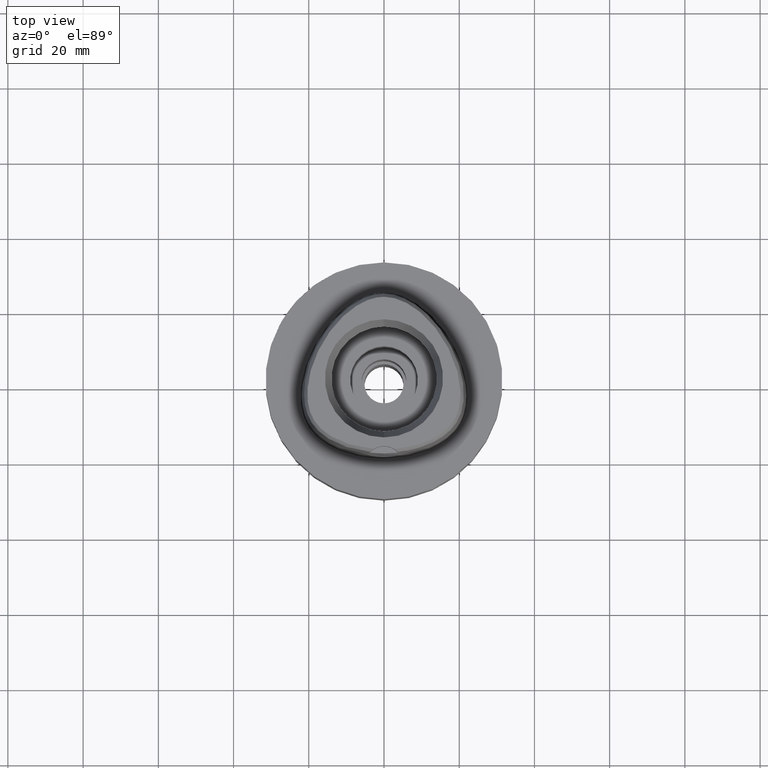
[diagram: clean part render]
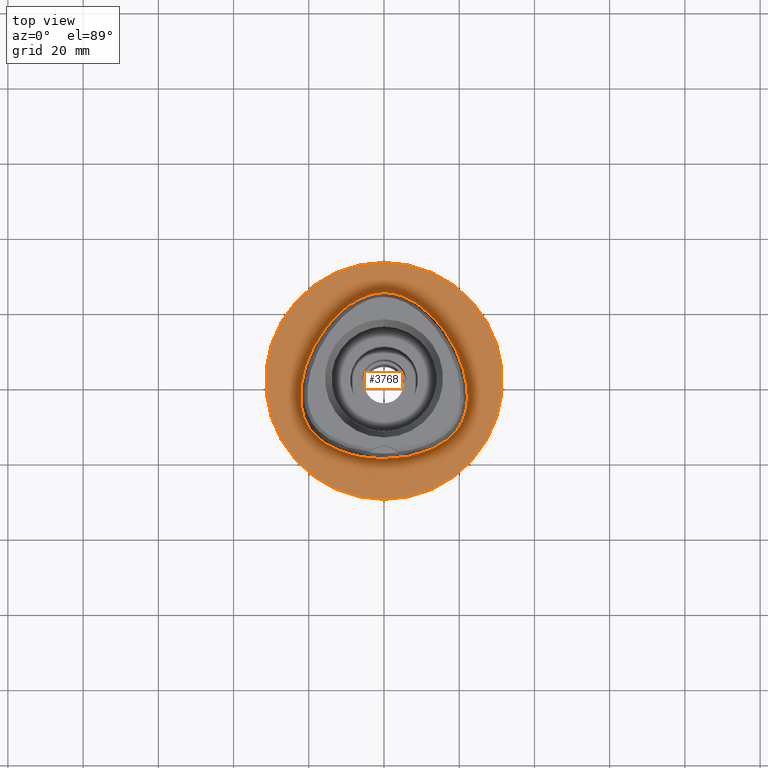
[diagram: same view with one face highlighted and labeled with its STEP entity id]
A machine part, top view. The second image highlights one B-rep face of the part: STEP entity #3768.
In plain terms, the highlighted planar face has unit normal (0, 0, -1).
Its self-contained STEP definition (entity closure, byte-faithful):
#7 = VERTEX_POINT ( 'NONE', #3811 ) ;
#34 = CARTESIAN_POINT ( 'NONE',  ( -16.95889172207992246, -15.67838866697177735, 2.483871594191090770E-07 ) ) ;
#111 = CARTESIAN_POINT ( 'NONE',  ( -20.34961798018169787, -11.74885741876239997, 2.483871594191090770E-07 ) ) ;
#113 = DIRECTION ( 'NONE',  ( 0.0000000000000000000, 0.0000000000000000000, -1.000000000000000000 ) ) ;
#119 = B_SPLINE_CURVE_WITH_KNOTS ( 'NONE', 3,
 ( #2642, #2214, #3771, #260, #1827, #3382, #4948, #1449, #4175, #671, #4971, #4197, #694, #2238, #1470, #3797, #2259, #282, #1849, #4588, #3818, #4998, #3055 ),
 .UNSPECIFIED., .F., .F.,
 ( 4, 1, 1, 1, 1, 1, 1, 1, 1, 1, 1, 1, 1, 1, 1, 1, 1, 1, 1, 1, 4 ),
 ( 0.0000000000000000000, 0.08333333333339000559, 0.1666666666667000196, 0.2083333333333000081, 0.2500000000000000000, 0.2916666666666999919, 0.3125000000000000000, 0.3333333333333000081, 0.3541666666666000163, 0.3749999999998999689, 0.4166666666666000163, 0.4583333333332000326, 0.4999999999998999689, 0.5833333333331000015, 0.6666666666664999852, 0.7499999999998000488, 0.8333333333329999704, 0.8749999999997000177, 0.9166666666664000651, 0.9583333333329999704, 1.000000000000000000 ),
 .UNSPECIFIED. ) ;
#224 = DIRECTION ( 'NONE',  ( 0.0000000000000000000, 0.0000000000000000000, -1.000000000000000000 ) ) ;
#260 = CARTESIAN_POINT ( 'NONE',  ( 11.23259758425134081, -18.89324223419839655, -1.976922916466011468E-06 ) ) ;
#282 = CARTESIAN_POINT ( 'NONE',  ( 10.74572894254814237, 19.17433597555162450, -1.976922916466011468E-06 ) ) ;
#298 = EDGE_LOOP ( 'NONE', ( #859, #1556 ) ) ;
#330 = FACE_BOUND ( 'NONE', #4058, .T. ) ;
#420 = CARTESIAN_POINT ( 'NONE',  ( -18.06826687986402646, 10.43171874688041001, 2.483871594191090770E-07 ) ) ;
#441 = CARTESIAN_POINT ( 'NONE',  ( -0.8548392418636427958, 23.47499999379704150, 2.483871594191090770E-07 ) ) ;
#560 = AXIS2_PLACEMENT_3D ( 'NONE', #3100, #3504, #3169 ) ;
#642 = CARTESIAN_POINT ( 'NONE',  ( 4.563465393014999971E-11, 23.47499999999000053, 5.514107688971999147E-14 ) ) ;
#671 = CARTESIAN_POINT ( 'NONE',  ( 20.93173256734707977, -10.60431642637643890, -1.976922916466011468E-06 ) ) ;
#694 = CARTESIAN_POINT ( 'NONE',  ( 22.24453912811934941, -4.100468749709265559, -1.976922916466011468E-06 ) ) ;
#710 = VERTEX_POINT ( 'NONE', #4251 ) ;
#764 = VERTEX_POINT ( 'NONE', #642 ) ;
#771 = EDGE_CURVE ( 'NONE', #7, #764, #119, .T. ) ;
#785 = CARTESIAN_POINT ( 'NONE',  ( -14.67337964111153426, -17.21410155709229883, 2.483871594191090770E-07 ) ) ;
#813 = CARTESIAN_POINT ( 'NONE',  ( -11.23259756514371865, -18.89324218163431368, 2.483871594191090770E-07 ) ) ;
#816 = AXIS2_PLACEMENT_3D ( 'NONE', #2414, #113, #1680 ) ;
#828 = EDGE_CURVE ( 'NONE', #2995, #710, #3259, .T. ) ;
#859 = ORIENTED_EDGE ( 'NONE', *, *, #828, .F. ) ;
#1017 = PLANE ( 'NONE',  #1875 ) ;
#1071 = EDGE_CURVE ( 'NONE', #710, #2995, #2686, .T. ) ;
#1183 = CARTESIAN_POINT ( 'NONE',  ( -19.64947365360898601, -12.82525390258760112, 2.483871594191090770E-07 ) ) ;
#1256 = CARTESIAN_POINT ( 'NONE',  ( -20.74942740292559762, 4.657187497882550709, 2.483871594191090770E-07 ) ) ;
#1342 = ORIENTED_EDGE ( 'NONE', *, *, #771, .F. ) ;
#1449 = CARTESIAN_POINT ( 'NONE',  ( 19.64947369868598770, -12.82525393535364522, -1.976922916466011468E-06 ) ) ;
#1470 = CARTESIAN_POINT ( 'NONE',  ( 20.74942745555231483, 4.657187516850373576, -1.976922916466011468E-06 ) ) ;
#1556 = ORIENTED_EDGE ( 'NONE', *, *, #1071, .F. ) ;
#1680 = DIRECTION ( 'NONE',  ( 0.0000000000000000000, -1.000000000000000000, 0.0000000000000000000 ) ) ;
#1827 = CARTESIAN_POINT ( 'NONE',  ( 14.67337966873001776, -17.21410160557213942, -1.976922916466011468E-06 ) ) ;
#1849 = CARTESIAN_POINT ( 'NONE',  ( 7.571159459389420476, 21.31457035528369559, -1.976922916466011468E-06 ) ) ;
#1875 = AXIS2_PLACEMENT_3D ( 'NONE', #3425, #224, #1898 ) ;
#1898 = DIRECTION ( 'NONE',  ( 0.0000000000000000000, -1.000000000000000000, 0.0000000000000000000 ) ) ;
#1963 = CARTESIAN_POINT ( 'NONE',  ( -22.05732873705026265, -6.847636717862386924, 2.483871594191090770E-07 ) ) ;
#2035 = CARTESIAN_POINT ( 'NONE',  ( -20.93173251642900823, -10.60431640372373607, 2.483871594191090770E-07 ) ) ;
#2214 = CARTESIAN_POINT ( 'NONE',  ( 2.113823676004852103, -20.67500004941687664, -1.976922916466011044E-06 ) ) ;
#2238 = CARTESIAN_POINT ( 'NONE',  ( 21.97832652680038024, -0.2810937413534981832, -1.976922916466011468E-06 ) ) ;
#2259 = CARTESIAN_POINT ( 'NONE',  ( 14.40795642755664652, 15.64093753207556503, -1.976922916466011468E-06 ) ) ;
#2276 = FACE_OUTER_BOUND ( 'NONE', #298, .T. ) ;
#2344 = CARTESIAN_POINT ( 'NONE',  ( -2.113823672695231526, -20.67499999378846454, 2.483871594191090770E-07 ) ) ;
#2371 = CARTESIAN_POINT ( 'NONE',  ( -5.098437014965430336, 22.52602538483874639, 2.483871594191090770E-07 ) ) ;
#2414 = CARTESIAN_POINT ( 'NONE',  ( 0.0000000000000000000, 0.0000000000000000000, 0.0000000000000000000 ) ) ;
#2642 = CARTESIAN_POINT ( 'NONE',  ( -7.554098293773000222E-12, -20.67499999999999716, 5.802765675373999636E-14 ) ) ;
#2686 = CIRCLE ( 'NONE', #816, 31.50000000000000000 ) ;
#2728 = CARTESIAN_POINT ( 'NONE',  ( -2.564517725680427684, 23.29328124389028076, 2.483871594191090770E-07 ) ) ;
#2798 = CARTESIAN_POINT ( 'NONE',  ( -22.24453907232029692, -4.100468750036125876, 2.483871594191090770E-07 ) ) ;
#2995 = VERTEX_POINT ( 'NONE', #4833 ) ;
#3055 = CARTESIAN_POINT ( 'NONE',  ( 4.563465393014999971E-11, 23.47499999999000053, 5.514107688971999147E-14 ) ) ;
#3100 = CARTESIAN_POINT ( 'NONE',  ( 0.0000000000000000000, 0.0000000000000000000, 0.0000000000000000000 ) ) ;
#3169 = DIRECTION ( 'NONE',  ( 0.0000000000000000000, 1.000000000000000000, 0.0000000000000000000 ) ) ;
#3259 = CIRCLE ( 'NONE', #560, 31.50000000000000000 ) ;
#3382 = CARTESIAN_POINT ( 'NONE',  ( 16.95889175661484316, -15.67838871089047359, -1.976922916466011468E-06 ) ) ;
#3425 = CARTESIAN_POINT ( 'NONE',  ( 0.0000000000000000000, 0.0000000000000000000, 0.0000000000000000000 ) ) ;
#3504 = DIRECTION ( 'NONE',  ( 0.0000000000000000000, 0.0000000000000000000, -1.000000000000000000 ) ) ;
#3540 = CARTESIAN_POINT ( 'NONE',  ( 4.563465393014999971E-11, 23.47499999999000053, 5.514107688971999147E-14 ) ) ;
#3593 = CARTESIAN_POINT ( 'NONE',  ( -6.341471018108045143, -20.29812499385486291, 2.483871594191090770E-07 ) ) ;
#3621 = CARTESIAN_POINT ( 'NONE',  ( -21.97832647171494003, -0.2810937510864339739, 2.483871594191090770E-07 ) ) ;
#3768 = ADVANCED_FACE ( 'NONE', ( #2276, #330 ), #1017, .F. ) ;
#3771 = CARTESIAN_POINT ( 'NONE',  ( 6.341471027992995779, -20.29812504892293390, -1.976922916466011891E-06 ) ) ;
#3797 = CARTESIAN_POINT ( 'NONE',  ( 18.06826692828425607, 10.43171877484354937, -1.976922916466011468E-06 ) ) ;
#3811 = CARTESIAN_POINT ( 'NONE',  ( -7.554098293773000222E-12, -20.67499999999999716, 5.802765675373999636E-14 ) ) ;
#3818 = CARTESIAN_POINT ( 'NONE',  ( 2.564517737115391327, 23.29328129866576091, -1.976922916466011468E-06 ) ) ;
#4003 = CARTESIAN_POINT ( 'NONE',  ( -21.55524825412133083, -8.996025388850016569, 2.483871594191090770E-07 ) ) ;
#4058 = EDGE_LOOP ( 'NONE', ( #4270, #1342 ) ) ;
#4134 = B_SPLINE_CURVE_WITH_KNOTS ( 'NONE', 3,
 ( #3540, #441, #2728, #2371, #4338, #4678, #4749, #420, #1256, #3621, #2798, #1963, #4003, #2035, #111, #1183, #4772, #34, #785, #813, #3593, #2344, #4358 ),
 .UNSPECIFIED., .F., .F.,
 ( 4, 1, 1, 1, 1, 1, 1, 1, 1, 1, 1, 1, 1, 1, 1, 1, 1, 1, 1, 1, 4 ),
 ( 0.0000000000000000000, 0.04166666666736999758, 0.08333333333399001175, 0.1250000000005999923, 0.1666666666673000119, 0.2500000000004999889, 0.3333333333337000215, 0.4166666666670000296, 0.5000000000002999823, 0.5416666666668999985, 0.5833333333335000148, 0.6250000000001000311, 0.6458333333333999837, 0.6666666666667999674, 0.6875000000001000311, 0.7083333333333000637, 0.7500000000000000000, 0.7916666666667000474, 0.8333333333332000326, 0.9166666666664999852, 1.000000000000000000 ),
 .UNSPECIFIED. ) ;
#4175 = CARTESIAN_POINT ( 'NONE',  ( 20.34961802845059609, -11.74885744662829623, -1.976922916466011468E-06 ) ) ;
#4197 = CARTESIAN_POINT ( 'NONE',  ( 22.05732879235335275, -6.847636725810371416, -1.976922916466011468E-06 ) ) ;
#4251 = CARTESIAN_POINT ( 'NONE',  ( 0.0000000000000000000, -31.50000000000000000, 0.0000000000000000000 ) ) ;
#4270 = ORIENTED_EDGE ( 'NONE', *, *, #4747, .F. ) ;
#4338 = CARTESIAN_POINT ( 'NONE',  ( -7.571159431204942614, 21.31457030712817513, 2.483871594191090770E-07 ) ) ;
#4358 = CARTESIAN_POINT ( 'NONE',  ( -7.554098293773000222E-12, -20.67499999999999716, 5.802765675373999636E-14 ) ) ;
#4588 = CARTESIAN_POINT ( 'NONE',  ( 5.098437035731360645, 22.52602543670625224, -1.976922916466011468E-06 ) ) ;
#4678 = CARTESIAN_POINT ( 'NONE',  ( -10.74572890657968749, 19.17433593271570302, 2.483871594191090770E-07 ) ) ;
#4747 = EDGE_CURVE ( 'NONE', #764, #7, #4134, .T. ) ;
#4749 = CARTESIAN_POINT ( 'NONE',  ( -14.40795638481364982, 15.64093749597185123, 2.483871594191090770E-07 ) ) ;
#4772 = CARTESIAN_POINT ( 'NONE',  ( -18.56841064689633569, -14.16937987852455727, 2.483871594191090770E-07 ) ) ;
#4833 = CARTESIAN_POINT ( 'NONE',  ( 0.0000000000000000000, 31.50000000000000000, 0.0000000000000000000 ) ) ;
#4948 = CARTESIAN_POINT ( 'NONE',  ( 18.56841068742441081, -14.16937991690989840, -1.976922916466011468E-06 ) ) ;
#4971 = CARTESIAN_POINT ( 'NONE',  ( 21.55524830763734911, -8.996025404754593779, -1.976922916466011468E-06 ) ) ;
#4998 = CARTESIAN_POINT ( 'NONE',  ( 0.8548392458104867586, 23.47500004942541452, -1.976922916466011468E-06 ) ) ;